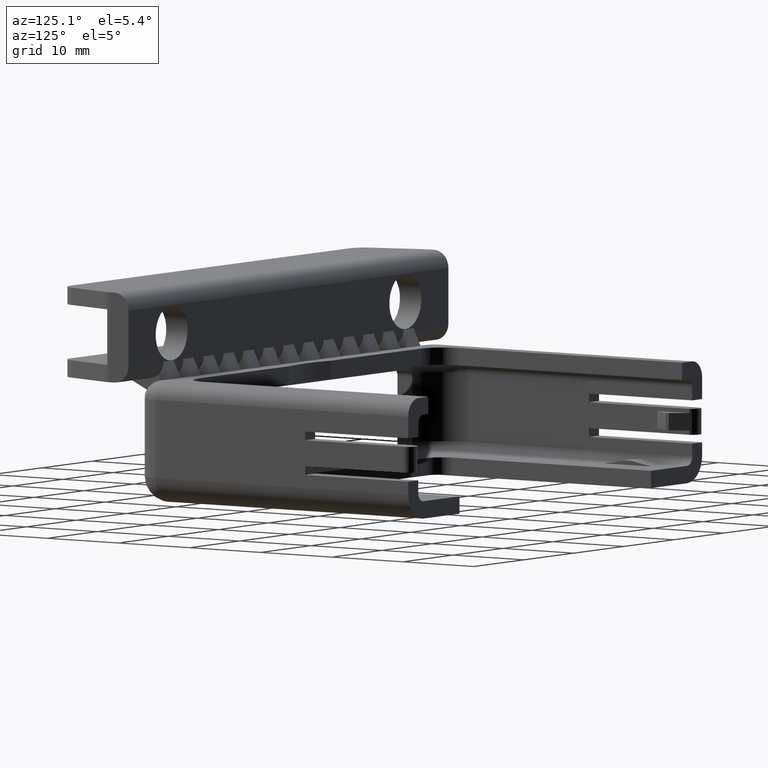
[diagram: clean part render]
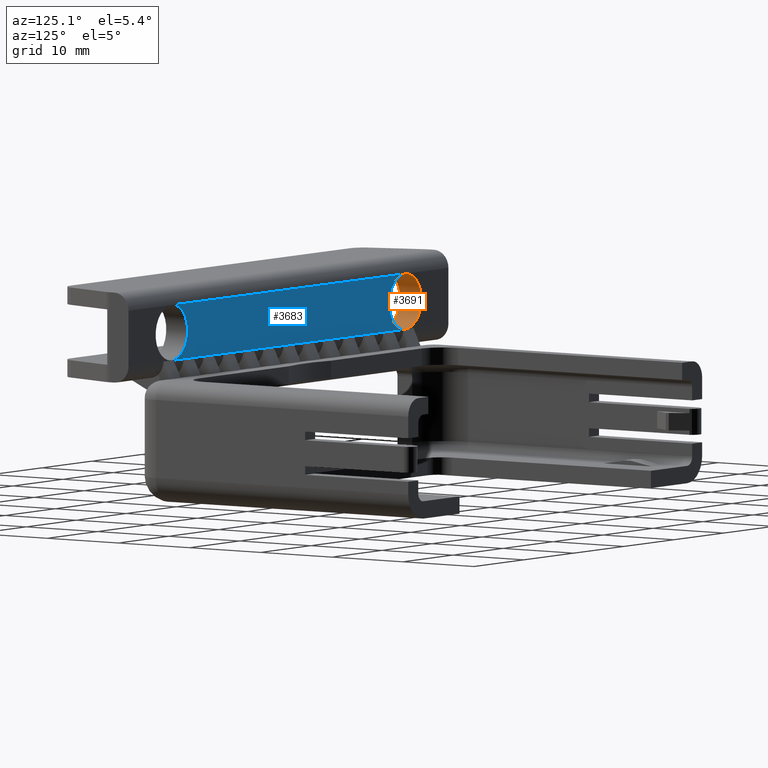
[diagram: same view with the hole feature highlighted: cylindrical wall and planar end face, labeled with their STEP entity ids]
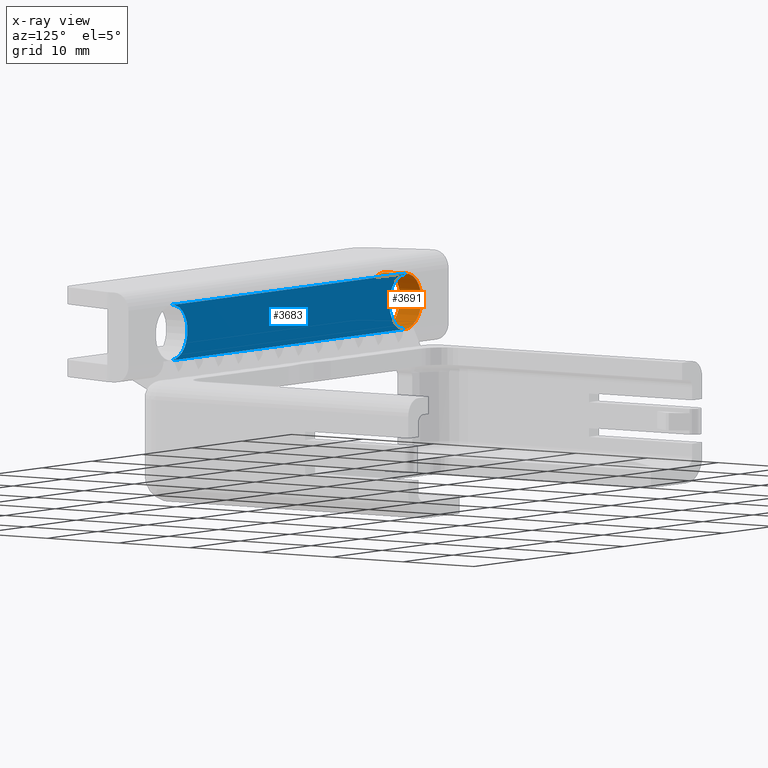
[diagram: x-ray of the same camera — body ghosted, the hole faces saturated]
A machine part, auxiliary view. The highlighted faces form one hole feature of diameter 6.4 mm: the cylindrical wall (entity #3691, orange) and its adjacent planar end face (entity #3683, blue) — they share a circular edge in the B-rep.
The next image is the same camera in x-ray (body ghosted, the hole faces saturated) — the bore reads through the body.
Wall:
#584=CIRCLE('',#3981,0.32);
#587=CIRCLE('',#3989,0.32);
#590=CIRCLE('',#3995,0.32);
#641=CYLINDRICAL_SURFACE('',#3994,0.32);
#776=VERTEX_POINT('',#5603);
#931=VERTEX_POINT('',#6023);
#942=VERTEX_POINT('',#6058);
#945=VERTEX_POINT('',#6076);
#2057=EDGE_CURVE('',#776,#942,#584,.T.);
#2068=EDGE_CURVE('',#931,#945,#587,.T.);
#2073=EDGE_CURVE('',#945,#931,#590,.T.);
#2074=EDGE_CURVE('',#942,#776,#584,.T.);
#3036=ORIENTED_EDGE('',*,*,#2068,.F.);
#3037=ORIENTED_EDGE('',*,*,#2073,.F.);
#3038=ORIENTED_EDGE('',*,*,#2057,.F.);
#3039=ORIENTED_EDGE('',*,*,#2074,.F.);
#3302=EDGE_LOOP('',(#3036,#3037));
#3303=EDGE_LOOP('',(#3038,#3039));
#3498=FACE_BOUND('',#3302,.T.);
#3499=FACE_BOUND('',#3303,.T.);
#3691=ADVANCED_FACE('',(#3498,#3499),#641,.F.);
#3981=AXIS2_PLACEMENT_3D('',#6057,#4743,#4744);
#3989=AXIS2_PLACEMENT_3D('',#6075,#4763,#4764);
#3994=AXIS2_PLACEMENT_3D('',#6084,#4775,#4776);
#3995=AXIS2_PLACEMENT_3D('',#6085,#4777,#4778);
#4743=DIRECTION('',(0.,-1.,0.));
#4744=DIRECTION('',(0.32,0.,0.));
#4763=DIRECTION('',(0.,1.,0.));
#4764=DIRECTION('',(0.32,0.,0.));
#4775=DIRECTION('',(0.,-1.,0.));
#4776=DIRECTION('',(0.32,0.,0.));
#4777=DIRECTION('',(0.,1.,0.));
#4778=DIRECTION('',(0.32,0.,0.));
#5603=CARTESIAN_POINT('',(-2.3375,-4.07010273331926E-017,0.2));
#6023=CARTESIAN_POINT('',(-2.3375,-0.3,0.2));
#6057=CARTESIAN_POINT('',(-2.3375,-4.07010273331926E-017,0.520000000000001));
#6058=CARTESIAN_POINT('',(-2.3375,-4.07010273331926E-017,0.84));
#6075=CARTESIAN_POINT('',(-2.3375,-0.3,0.520000000000001));
#6076=CARTESIAN_POINT('',(-2.3375,-0.3,0.84));
#6084=CARTESIAN_POINT('',(-2.3375,-4.07010273331926E-017,0.520000000000001));
#6085=CARTESIAN_POINT('',(-2.3375,-0.3,0.520000000000001));
End face:
#583=CIRCLE('',#3980,0.32);
#584=CIRCLE('',#3981,0.32);
#776=VERTEX_POINT('',#5603);
#777=VERTEX_POINT('',#5605);
#788=VERTEX_POINT('',#5637);
#789=VERTEX_POINT('',#5638);
#798=VERTEX_POINT('',#5665);
#799=VERTEX_POINT('',#5666);
#808=VERTEX_POINT('',#5693);
#809=VERTEX_POINT('',#5694);
#818=VERTEX_POINT('',#5721);
#819=VERTEX_POINT('',#5722);
#828=VERTEX_POINT('',#5749);
#829=VERTEX_POINT('',#5750);
#839=VERTEX_POINT('',#5779);
#840=VERTEX_POINT('',#5780);
#881=VERTEX_POINT('',#5867);
#882=VERTEX_POINT('',#5869);
#887=VERTEX_POINT('',#5888);
#888=VERTEX_POINT('',#5890);
#893=VERTEX_POINT('',#5909);
#894=VERTEX_POINT('',#5911);
#899=VERTEX_POINT('',#5930);
#900=VERTEX_POINT('',#5932);
#905=VERTEX_POINT('',#5951);
#906=VERTEX_POINT('',#5953);
#911=VERTEX_POINT('',#5972);
#912=VERTEX_POINT('',#5974);
#941=VERTEX_POINT('',#6055);
#942=VERTEX_POINT('',#6058);
#1101=VECTOR('',#4369,1.);
#1245=VECTOR('',#4745,1.);
#1416=LINE('',#5604,#1101);
#1560=LINE('',#6059,#1245);
#1803=EDGE_CURVE('',#776,#777,#1416,.T.);
#1820=EDGE_CURVE('',#788,#789,#1416,.T.);
#1826=EDGE_CURVE('',#777,#788,#1416,.T.);
#1836=EDGE_CURVE('',#798,#799,#1416,.T.);
#1842=EDGE_CURVE('',#789,#798,#1416,.T.);
#1852=EDGE_CURVE('',#808,#809,#1416,.T.);
#1858=EDGE_CURVE('',#799,#808,#1416,.T.);
#1868=EDGE_CURVE('',#818,#819,#1416,.T.);
#1874=EDGE_CURVE('',#809,#818,#1416,.T.);
#1884=EDGE_CURVE('',#828,#829,#1416,.T.);
#1890=EDGE_CURVE('',#819,#828,#1416,.T.);
#1901=EDGE_CURVE('',#839,#840,#1416,.T.);
#1952=EDGE_CURVE('',#882,#881,#1416,.T.);
#1955=EDGE_CURVE('',#881,#839,#1416,.T.);
#1964=EDGE_CURVE('',#888,#887,#1416,.T.);
#1967=EDGE_CURVE('',#887,#882,#1416,.T.);
#1976=EDGE_CURVE('',#894,#893,#1416,.T.);
#1979=EDGE_CURVE('',#893,#888,#1416,.T.);
#1988=EDGE_CURVE('',#900,#899,#1416,.T.);
#1991=EDGE_CURVE('',#899,#894,#1416,.T.);
#2000=EDGE_CURVE('',#906,#905,#1416,.T.);
#2003=EDGE_CURVE('',#905,#900,#1416,.T.);
#2012=EDGE_CURVE('',#912,#911,#1416,.T.);
#2015=EDGE_CURVE('',#911,#906,#1416,.T.);
#2054=EDGE_CURVE('',#829,#912,#1416,.T.);
#2057=EDGE_CURVE('',#776,#942,#584,.T.);
#2058=EDGE_CURVE('',#941,#942,#1560,.T.);
#2059=EDGE_CURVE('',#941,#840,#583,.T.);
#2972=ORIENTED_EDGE('',*,*,#1803,.F.);
#2973=ORIENTED_EDGE('',*,*,#2057,.T.);
#2974=ORIENTED_EDGE('',*,*,#2058,.F.);
#2975=ORIENTED_EDGE('',*,*,#2059,.T.);
#2976=ORIENTED_EDGE('',*,*,#1901,.F.);
#2977=ORIENTED_EDGE('',*,*,#1955,.F.);
#2978=ORIENTED_EDGE('',*,*,#1952,.F.);
#2979=ORIENTED_EDGE('',*,*,#1967,.F.);
#2980=ORIENTED_EDGE('',*,*,#1964,.F.);
#2981=ORIENTED_EDGE('',*,*,#1979,.F.);
#2982=ORIENTED_EDGE('',*,*,#1976,.F.);
#2983=ORIENTED_EDGE('',*,*,#1991,.F.);
#2984=ORIENTED_EDGE('',*,*,#1988,.F.);
#2985=ORIENTED_EDGE('',*,*,#2003,.F.);
#2986=ORIENTED_EDGE('',*,*,#2000,.F.);
#2987=ORIENTED_EDGE('',*,*,#2015,.F.);
#2988=ORIENTED_EDGE('',*,*,#2012,.F.);
#2989=ORIENTED_EDGE('',*,*,#2054,.F.);
#2990=ORIENTED_EDGE('',*,*,#1884,.F.);
#2991=ORIENTED_EDGE('',*,*,#1890,.F.);
#2992=ORIENTED_EDGE('',*,*,#1868,.F.);
#2993=ORIENTED_EDGE('',*,*,#1874,.F.);
#2994=ORIENTED_EDGE('',*,*,#1852,.F.);
#2995=ORIENTED_EDGE('',*,*,#1858,.F.);
#2996=ORIENTED_EDGE('',*,*,#1836,.F.);
#2997=ORIENTED_EDGE('',*,*,#1842,.F.);
#2998=ORIENTED_EDGE('',*,*,#1820,.F.);
#2999=ORIENTED_EDGE('',*,*,#1826,.F.);
#3293=EDGE_LOOP('',(#2972,#2973,#2974,#2975,#2976,#2977,#2978,#2979,#2980,
#2981,#2982,#2983,#2984,#2985,#2986,#2987,#2988,#2989,#2990,#2991,#2992,
#2993,#2994,#2995,#2996,#2997,#2998,#2999));
#3489=FACE_BOUND('',#3293,.T.);
#3683=ADVANCED_FACE('',(#3489),#6252,.T.);
#3979=AXIS2_PLACEMENT_3D('',#6053,#4739,$);
#3980=AXIS2_PLACEMENT_3D('',#6054,#4740,#4741);
#3981=AXIS2_PLACEMENT_3D('',#6057,#4743,#4744);
#4369=DIRECTION('',(1.,0.,2.8106722626267E-033));
#4739=DIRECTION('',(0.,1.,0.));
#4740=DIRECTION('',(0.,-1.,0.));
#4741=DIRECTION('',(0.32,0.,0.));
#4743=DIRECTION('',(0.,-1.,0.));
#4744=DIRECTION('',(0.32,0.,0.));
#4745=DIRECTION('',(-1.,0.,-2.8106722626267E-033));
#5603=CARTESIAN_POINT('',(-2.3375,-4.07010273331926E-017,0.2));
#5604=CARTESIAN_POINT('',(-1.53465360425628E-018,-2.77555756156289E-017,
0.2));
#5605=CARTESIAN_POINT('',(-2.3,-5.55111512312578E-017,0.2));
#5637=CARTESIAN_POINT('',(-2.1,-5.55111512312578E-017,0.2));
#5638=CARTESIAN_POINT('',(-1.9,-5.55111512312578E-017,0.2));
#5665=CARTESIAN_POINT('',(-1.7,-5.55111512312578E-017,0.2));
#5666=CARTESIAN_POINT('',(-1.5,-5.55111512312578E-017,0.2));
#5693=CARTESIAN_POINT('',(-1.3,-5.55111512312578E-017,0.2));
#5694=CARTESIAN_POINT('',(-1.1,-5.55111512312578E-017,0.2));
#5721=CARTESIAN_POINT('',(-0.9,-5.55111512312578E-017,0.2));
#5722=CARTESIAN_POINT('',(-0.7,-5.55111512312578E-017,0.2));
#5749=CARTESIAN_POINT('',(-0.5,-5.55111512312578E-017,0.2));
#5750=CARTESIAN_POINT('',(-0.3,-5.55111512312578E-017,0.2));
#5779=CARTESIAN_POINT('',(2.3,-5.55111512312578E-017,0.2));
#5780=CARTESIAN_POINT('',(2.3375,-4.07010273331926E-017,0.2));
#5867=CARTESIAN_POINT('',(2.1,-5.55111512312578E-017,0.2));
#5869=CARTESIAN_POINT('',(1.9,-5.55111512312578E-017,0.2));
#5888=CARTESIAN_POINT('',(1.7,-5.55111512312578E-017,0.2));
#5890=CARTESIAN_POINT('',(1.5,-5.55111512312578E-017,0.2));
#5909=CARTESIAN_POINT('',(1.3,-5.55111512312578E-017,0.2));
#5911=CARTESIAN_POINT('',(1.1,-5.55111512312578E-017,0.2));
#5930=CARTESIAN_POINT('',(0.9,-5.55111512312578E-017,0.2));
#5932=CARTESIAN_POINT('',(0.7,-5.55111512312578E-017,0.2));
#5951=CARTESIAN_POINT('',(0.5,-5.55111512312578E-017,0.2));
#5953=CARTESIAN_POINT('',(0.3,-5.55111512312578E-017,0.2));
#5972=CARTESIAN_POINT('',(0.1,-5.55111512312578E-017,0.2));
#5974=CARTESIAN_POINT('',(-0.1,-5.55111512312578E-017,0.2));
#6053=CARTESIAN_POINT('',(0.,-4.07010273331926E-017,0.));
#6054=CARTESIAN_POINT('',(2.3375,-4.07010273331926E-017,0.520000000000001));
#6055=CARTESIAN_POINT('',(2.3375,-4.07010273331926E-017,0.84));
#6057=CARTESIAN_POINT('',(-2.3375,-4.07010273331926E-017,0.520000000000001));
#6058=CARTESIAN_POINT('',(-2.3375,-4.07010273331926E-017,0.84));
#6059=CARTESIAN_POINT('',(-1.53465360425628E-018,-2.77555756156289E-017,
0.84));
#6252=PLANE('',#3979);